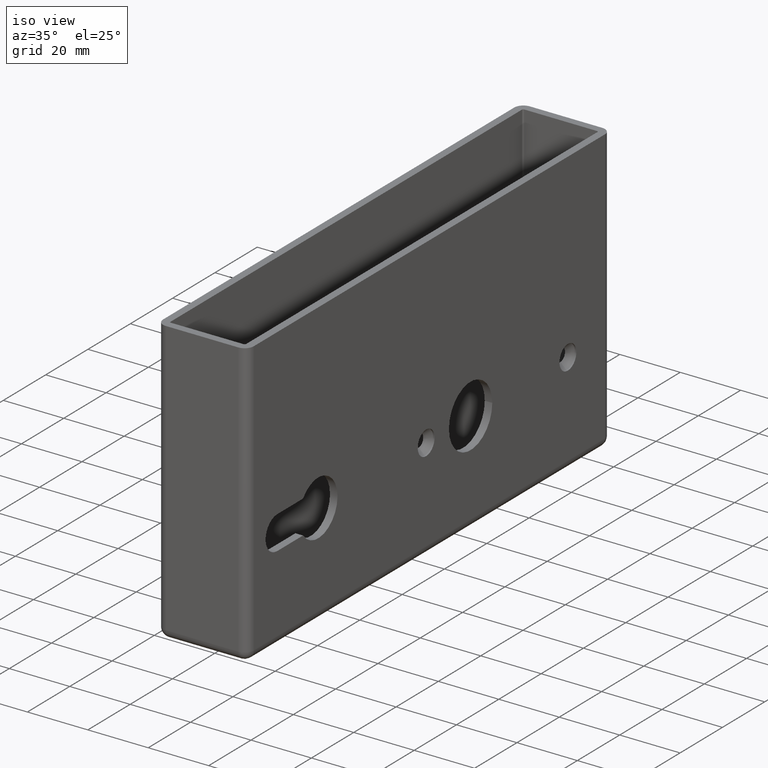
[diagram: clean part render]
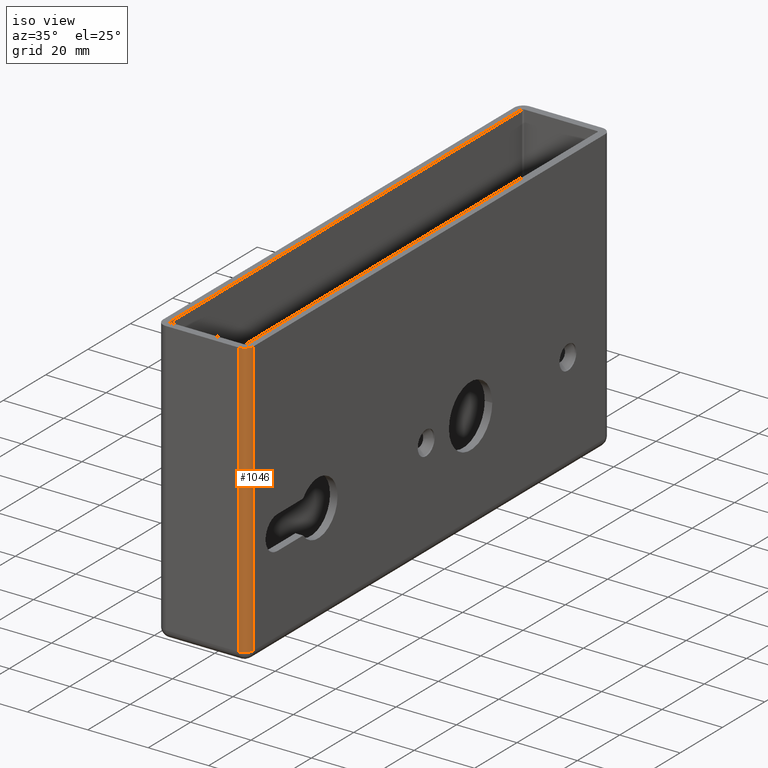
[diagram: same view with one face highlighted and labeled with its STEP entity id]
A machine part, iso view. The second image highlights one B-rep face of the part: STEP entity #1046.
In plain terms, the highlighted cylindrical surface (edge-blend (fillet) strip) has radius 3 mm, axis along (0, 0, -1).
Its self-contained STEP definition (entity closure, byte-faithful):
#338 = VERTEX_POINT ( 'NONE', #10823 ) ;
#431 = DIRECTION ( 'NONE',  ( 0.000000000000000000, 0.000000000000000000, -1.000000000000000000 ) ) ;
#482 = DIRECTION ( 'NONE',  ( -1.000000000000000000, 0.000000000000000000, 0.000000000000000000 ) ) ;
#667 = AXIS2_PLACEMENT_3D ( 'NONE', #1389, #10539, #482 ) ;
#863 = DIRECTION ( 'NONE',  ( 0.000000000000000000, 0.000000000000000000, 1.000000000000000000 ) ) ;
#938 = LINE ( 'NONE', #11733, #8317 ) ;
#1046 = ADVANCED_FACE ( 'NONE', ( #4704 ), #4387, .T. ) ;
#1389 = CARTESIAN_POINT ( 'NONE',  ( 12.00000000000001421, -82.99999999999998579, 47.00000000000000000 ) ) ;
#1467 = CARTESIAN_POINT ( 'NONE',  ( 12.00000000000001421, -86.00000000000000000, -44.00000000000000000 ) ) ;
#2591 = CIRCLE ( 'NONE', #12387, 2.999999999999999112 ) ;
#2824 = VECTOR ( 'NONE', #6517, 1000.000000000000000 ) ;
#4002 = EDGE_CURVE ( 'NONE', #12254, #338, #5500, .T. ) ;
#4387 = CYLINDRICAL_SURFACE ( 'NONE', #667, 2.999999999999999112 ) ;
#4704 = FACE_OUTER_BOUND ( 'NONE', #11076, .T. ) ;
#4769 = CARTESIAN_POINT ( 'NONE',  ( 15.00000000000001421, -82.99999999999998579, 47.00000000000000000 ) ) ;
#4874 = DIRECTION ( 'NONE',  ( 1.000000000000000000, 0.000000000000000000, 0.000000000000000000 ) ) ;
#5087 = ORIENTED_EDGE ( 'NONE', *, *, #13037, .F. ) ;
#5500 = LINE ( 'NONE', #9648, #2824 ) ;
#6029 = ORIENTED_EDGE ( 'NONE', *, *, #12201, .F. ) ;
#6264 = VERTEX_POINT ( 'NONE', #11671 ) ;
#6517 = DIRECTION ( 'NONE',  ( 0.000000000000000000, 0.000000000000000000, -1.000000000000000000 ) ) ;
#7262 = AXIS2_PLACEMENT_3D ( 'NONE', #8797, #863, #4874 ) ;
#7791 = CIRCLE ( 'NONE', #7262, 2.999999999999999112 ) ;
#8317 = VECTOR ( 'NONE', #10342, 1000.000000000000000 ) ;
#8471 = CARTESIAN_POINT ( 'NONE',  ( 12.00000000000001421, -82.99999999999998579, -44.00000000000000000 ) ) ;
#8797 = CARTESIAN_POINT ( 'NONE',  ( 12.00000000000001421, -82.99999999999998579, 47.00000000000000000 ) ) ;
#9076 = EDGE_CURVE ( 'NONE', #9950, #6264, #938, .T. ) ;
#9648 = CARTESIAN_POINT ( 'NONE',  ( 15.00000000000001421, -82.99999999999998579, 47.00000000000000000 ) ) ;
#9950 = VERTEX_POINT ( 'NONE', #1467 ) ;
#10342 = DIRECTION ( 'NONE',  ( -0.000000000000000000, -0.000000000000000000, 1.000000000000000000 ) ) ;
#10416 = ORIENTED_EDGE ( 'NONE', *, *, #4002, .F. ) ;
#10539 = DIRECTION ( 'NONE',  ( 0.000000000000000000, 0.000000000000000000, -1.000000000000000000 ) ) ;
#10823 = CARTESIAN_POINT ( 'NONE',  ( 15.00000000000001421, -82.99999999999998579, -44.00000000000000000 ) ) ;
#11076 = EDGE_LOOP ( 'NONE', ( #6029, #12189, #5087, #10416 ) ) ;
#11671 = CARTESIAN_POINT ( 'NONE',  ( 12.00000000000000888, -86.00000000000000000, 47.00000000000000000 ) ) ;
#11733 = CARTESIAN_POINT ( 'NONE',  ( 12.00000000000001599, -86.00000000000000000, 47.00000000000000000 ) ) ;
#12189 = ORIENTED_EDGE ( 'NONE', *, *, #9076, .F. ) ;
#12201 = EDGE_CURVE ( 'NONE', #6264, #12254, #7791, .T. ) ;
#12254 = VERTEX_POINT ( 'NONE', #4769 ) ;
#12387 = AXIS2_PLACEMENT_3D ( 'NONE', #8471, #431, #12488 ) ;
#12488 = DIRECTION ( 'NONE',  ( -1.000000000000000000, 0.000000000000000000, 0.000000000000000000 ) ) ;
#13037 = EDGE_CURVE ( 'NONE', #338, #9950, #2591, .T. ) ;